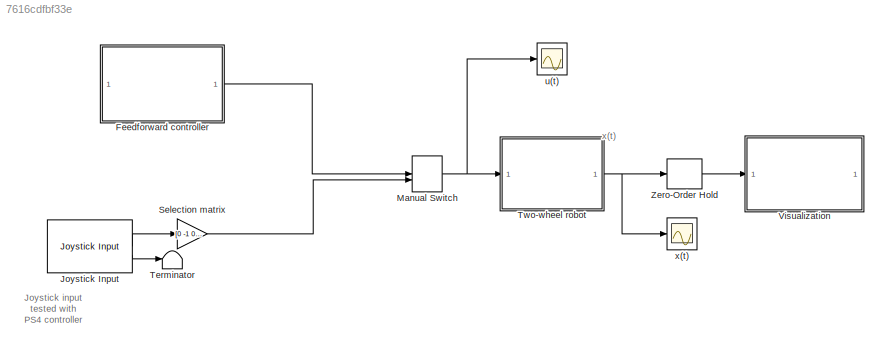
MODEL slx_7616cdfbf33e
KIND model
CONFIG AbsTol = 1e-6
CONFIG EnableMultiTasking = off
CONFIG FixedStep = 1e-2
CONFIG MaxStep = auto
CONFIG MinStep = auto
CONFIG RelTol = 1e-3
CONFIG SampleTimeConstraint = Unconstrained
CONFIG SolverName = ode4
CONFIG StartTime = 0
CONFIG StopTime = 100
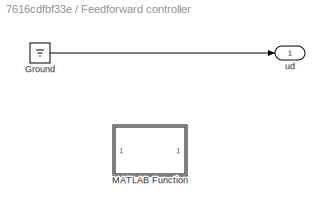
BLOCK [SubSystem] Feedforward controller
BLOCK [Ground] Feedforward controller/Ground
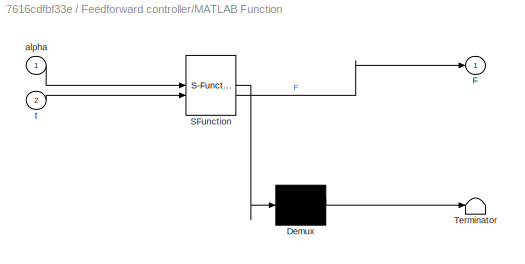
BLOCK [SubSystem] Feedforward controller/MATLAB Function
  ErrorFcn = Stateflow.Translate.translate
  PermitHierarchicalResolution = ExplicitOnly
  SFBlockType = MATLAB Function
  TreatAsAtomicUnit = on
BLOCK [Demux] Feedforward controller/MATLAB Function/ Demux 
  Outputs = 1
BLOCK [S-Function] Feedforward controller/MATLAB Function/ SFunction 
  EnableBusSupport = off
  FunctionName = sf_sfun
  PortCounts = [2 2]
  SFcnIsStateOwnerBlock = off
  SFunctionDeploymentMode = off
  Tag = Stateflow S-Function 3
BLOCK [Terminator] Feedforward controller/MATLAB Function/ Terminator 
BLOCK [Outport] Feedforward controller/MATLAB Function/F
BLOCK [Inport] Feedforward controller/MATLAB Function/alpha
BLOCK [Inport] Feedforward controller/MATLAB Function/t
  Port = 2
BLOCK [Outport] Feedforward controller/ud
BLOCK [Reference] Joystick Input  REF=vrlib/Joystick Input
  SourceBlock = vrlib/Joystick Input
  SourceType = Joystick Input
BLOCK [ManualSwitch] Manual Switch
  CurrentSetting = 0
BLOCK [Gain] Selection matrix
  Gain = [0 -1 0 0 0 0 0 0;-1 0 0 0 0 0 0 0]
  Multiplication = Matrix(K*u) (u vector)
  NameLocation = top
BLOCK [Terminator] Terminator
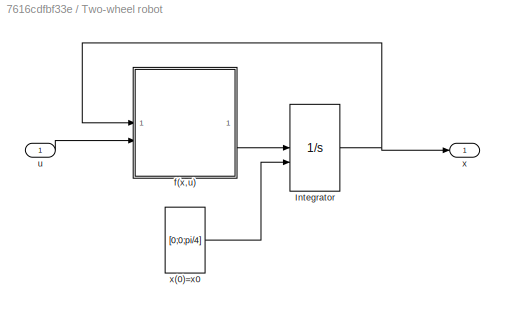
BLOCK [SubSystem] Two-wheel robot
BLOCK [Integrator] Two-wheel robot/Integrator
  InitialConditionSource = external
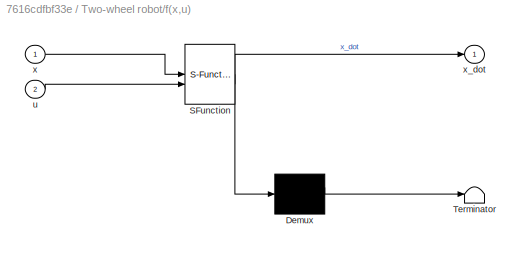
BLOCK [SubSystem] Two-wheel robot/f(x,u)
  ErrorFcn = Stateflow.Translate.translate
  PermitHierarchicalResolution = ExplicitOnly
  SFBlockType = MATLAB Function
  TreatAsAtomicUnit = on
BLOCK [Demux] Two-wheel robot/f(x,u)/ Demux 
  Outputs = 1
BLOCK [S-Function] Two-wheel robot/f(x,u)/ SFunction 
  EnableBusSupport = on
  FunctionName = sf_sfun
  PortCounts = [2 2]
  SFcnIsStateOwnerBlock = off
  SFunctionDeploymentMode = off
  Tag = Stateflow S-Function 2
BLOCK [Terminator] Two-wheel robot/f(x,u)/ Terminator 
BLOCK [Inport] Two-wheel robot/f(x,u)/u
  Port = 2
BLOCK [Inport] Two-wheel robot/f(x,u)/x
BLOCK [Outport] Two-wheel robot/f(x,u)/x_dot
BLOCK [Inport] Two-wheel robot/u
BLOCK [Outport] Two-wheel robot/x
BLOCK [Constant] Two-wheel robot/x(0)=x0
  Value = [0;0;pi/4]
  VectorParams1D = off
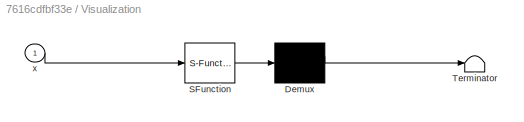
BLOCK [SubSystem] Visualization
  ErrorFcn = Stateflow.Translate.translate
  PermitHierarchicalResolution = ExplicitOnly
  SFBlockType = MATLAB Function
  TreatAsAtomicUnit = on
BLOCK [Demux] Visualization/ Demux 
  Outputs = 1
BLOCK [S-Function] Visualization/ SFunction 
  EnableBusSupport = on
  FunctionName = sf_sfun
  PortCounts = [1 1]
  SFcnIsStateOwnerBlock = off
  SFunctionDeploymentMode = off
  Tag = Stateflow S-Function 1
BLOCK [Terminator] Visualization/ Terminator 
BLOCK [Inport] Visualization/x
BLOCK [ZeroOrderHold] Zero-Order Hold
  SampleTime = 0.1
BLOCK [Scope] u(t)
  Floating = off
  NumInputPorts = 1
  ScopeSpecificationString = Simulink.scopes.TimeScopeBlockCfg('CurrentConfiguration', extmgr.ConfigurationSet(extmgr.Configuration('Core','General UI',true),extmgr.Configuration('Core','Source UI',true),extmgr.Configuration('Sources','WiredSimulink',true),extmgr.Configuration('Visuals','Time Domain',true,'SerializedDisplays',{struct('MinYLimReal','-1.25','MaxYLimReal','1.25','YLabelReal','','MinYLimMag','0.00000','MaxYLimMag...<+1453ch>
BLOCK [Scope] x(t)
  Floating = off
  NumInputPorts = 1
  ScopeSpecificationString = Simulink.scopes.TimeScopeBlockCfg('CurrentConfiguration', extmgr.ConfigurationSet(extmgr.Configuration('Core','General UI',true),extmgr.Configuration('Core','Source UI',true),extmgr.Configuration('Sources','WiredSimulink',true,'DataLoggingVariableName','ScopeData1'),extmgr.Configuration('Visuals','Time Domain',true,'SerializedDisplays',{struct('MinYLimReal','-10.9364','MaxYLimReal','10.22419','YLa...<+1537ch>
ANNOTATION (root): Joystick input tested with PS4 controller
ANNOTATION (root): x(t)
LINE Feedforward controller/Ground:1 -> Feedforward controller/ud:1
LINE Feedforward controller:1 -> Manual Switch:1
LINE Joystick Input:1 -> Selection matrix:1
LINE Joystick Input:2 -> Terminator:1
NET Manual Switch:1 -> Two-wheel robot:1, u(t):1
LINE Selection matrix:1 -> Manual Switch:2
NET Two-wheel robot/Integrator:1 -> Two-wheel robot/f(x,u):1, Two-wheel robot/x:1
LINE Two-wheel robot/f(x,u):1 -> Two-wheel robot/Integrator:1
LINE Two-wheel robot/u:1 -> Two-wheel robot/f(x,u):2
LINE Two-wheel robot/x(0)=x0:1 -> Two-wheel robot/Integrator:2
NET Two-wheel robot:1 -> Zero-Order Hold:1, x(t):1
LINE Zero-Order Hold:1 -> Visualization:1
note: NET lines group one-source signal fan-out (src -> all destinations, sorted); 1:1 wires keep LINE
CHART Two-wheel robot/f(x,u) states=1 transitions=1
  STATE_LABEL 'eML_blk_kernel()'
  STATE_LABEL 'SCRIPT:\nfunction x_dot = f(x,u)\n\n% dynamic variables\nx1 = x(1);\nx2 = x(2);\ntheta = x(3);\n\n% control inputs\nu1 = u(1);\nu2 = u(2);\n\nx1_dot = u1*cos(theta);\nx2_dot = u1*sin(theta);\ntheta_dot = u2;\n\nx_dot = [ x1_dot ; x2_dot ; theta_dot ];\n'
CHART Feedforward controller/MATLAB Function states=1 transitions=1
  STATE_LABEL 'eML_blk_kernel()'
  STATE_LABEL 'SCRIPT:\nfunction F = flat_outputs(alpha, t)\n\n'
CHART Visualization states=1 transitions=1
  STATE_LABEL 'eML_blk_kernel()'
  STATE_LABEL 'SCRIPT:\nfunction fcn(x)\n\nx1 = x(1);\nx2 = x(2);\ntheta = x(3);\n\n% body "shape"\n    Ybody = [ -0.2 ; -0.2 ; 0.2 ; 0.2 ];\n    Xbody = [ -0.15 ; 0.15 ; 0.15 ; -0.15 ]; \n\n% front "shape" \n    Yfront = [ -0.2 ; -0.1 ; 0.1 ; 0.2 ];\n    Xfront = [ 0.15 ; 0.2 ; 0.2 ; 0.15 ];\n    \n% wheel model "shape"\n    Yw = [ -0.02 ; -0.02 ; 0.02 ; 0.02 ];\n    Xw = [ -0.13 ; 0.13 ; 0.13 ; -0.13 ];\n    \n% left wheel\n    Y...<+1242ch>'
CHART  states=0 transitions=0
CHART  states=0 transitions=0
CHART  states=0 transitions=0
